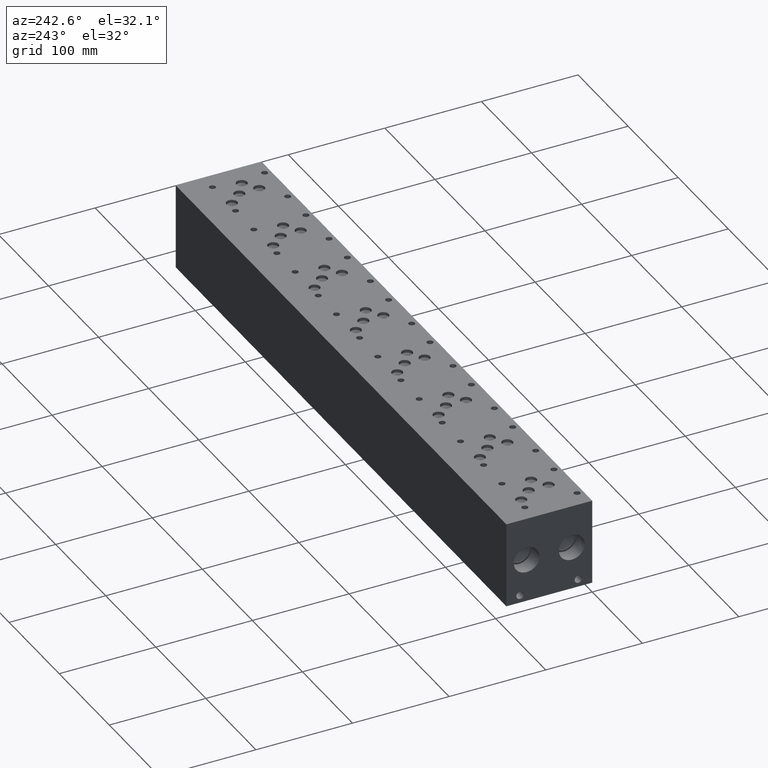
[diagram: clean part render]
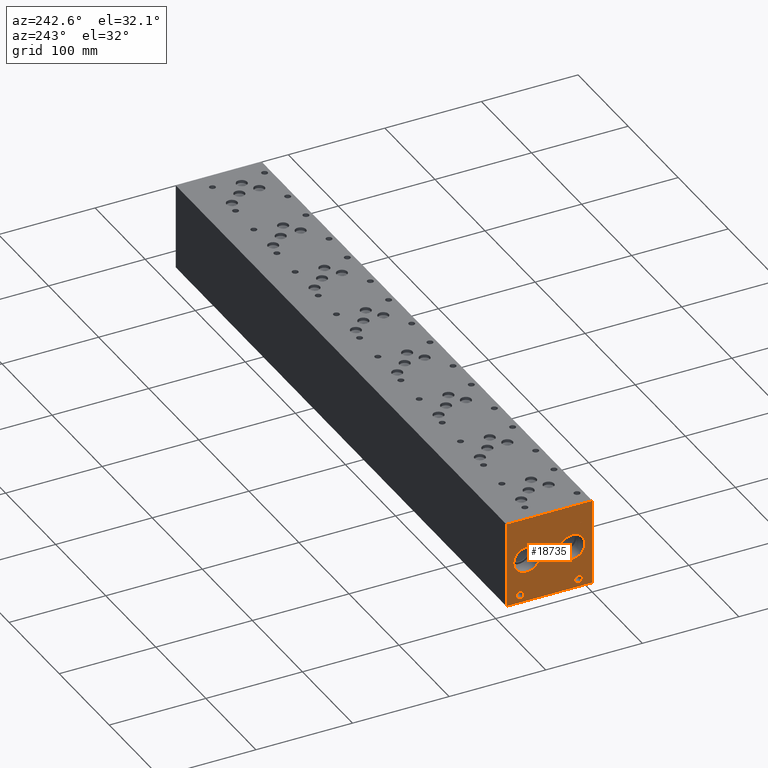
[diagram: same view with one face highlighted and labeled with its STEP entity id]
A machine part, auxiliary view. The second image highlights one B-rep face of the part: STEP entity #18735.
In plain terms, the highlighted planar face has unit normal (-1, 0, 0).
Its self-contained STEP definition (entity closure, byte-faithful):
#257=CIRCLE('',#19764,3.9624);
#258=CIRCLE('',#19765,3.9624);
#259=CIRCLE('',#19766,3.9624);
#260=CIRCLE('',#19767,3.9624);
#261=CIRCLE('',#19768,13.462);
#262=CIRCLE('',#19769,13.462);
#263=CIRCLE('',#19770,13.462);
#264=CIRCLE('',#19771,13.462);
#784=FACE_BOUND('',#2830,.T.);
#785=FACE_BOUND('',#2831,.T.);
#786=FACE_BOUND('',#2832,.T.);
#787=FACE_BOUND('',#2833,.T.);
#788=FACE_BOUND('',#2834,.T.);
#789=FACE_BOUND('',#2835,.T.);
#1023=B_SPLINE_CURVE_WITH_KNOTS('',2,(#25739,#25740,#25741,#25742),
 .UNSPECIFIED.,.F.,.F.,(3,1,3),(0.,1.,2.),.UNSPECIFIED.);
#1025=B_SPLINE_CURVE_WITH_KNOTS('',2,(#25760,#25761,#25762,#25763),
 .UNSPECIFIED.,.F.,.F.,(3,1,3),(0.,1.,2.),.UNSPECIFIED.);
#1027=B_SPLINE_CURVE_WITH_KNOTS('',2,(#25809,#25810,#25811,#25812),
 .UNSPECIFIED.,.F.,.F.,(3,1,3),(0.,1.,2.),.UNSPECIFIED.);
#1029=B_SPLINE_CURVE_WITH_KNOTS('',2,(#25827,#25828,#25829,#25830),
 .UNSPECIFIED.,.F.,.F.,(3,1,3),(0.,1.,2.),.UNSPECIFIED.);
#1799=FACE_OUTER_BOUND('',#2829,.T.);
#2829=EDGE_LOOP('',(#12295,#12296,#12297,#12298));
#2830=EDGE_LOOP('',(#12299,#12300,#12301,#12302,#12303,#12304,#12305,#12306));
#2831=EDGE_LOOP('',(#12307,#12308));
#2832=EDGE_LOOP('',(#12309,#12310));
#2833=EDGE_LOOP('',(#12311,#12312));
#2834=EDGE_LOOP('',(#12313,#12314));
#2835=EDGE_LOOP('',(#12315,#12316,#12317,#12318,#12319,#12320,#12321,#12322,
#12323));
#4073=LINE('',#25589,#5763);
#4077=LINE('',#25597,#5767);
#4080=LINE('',#25603,#5770);
#4083=LINE('',#25609,#5773);
#4086=LINE('',#25615,#5776);
#4089=LINE('',#25621,#5779);
#4092=LINE('',#25627,#5782);
#4095=LINE('',#25632,#5785);
#4113=LINE('',#25772,#5803);
#4116=LINE('',#25778,#5806);
#4119=LINE('',#25784,#5809);
#4122=LINE('',#25790,#5812);
#4125=LINE('',#25796,#5815);
#4129=LINE('',#25839,#5819);
#4130=LINE('',#25841,#5820);
#4131=LINE('',#25843,#5821);
#4132=LINE('',#25844,#5822);
#5763=VECTOR('',#21136,10.);
#5767=VECTOR('',#21142,10.);
#5770=VECTOR('',#21147,10.);
#5773=VECTOR('',#21152,10.);
#5776=VECTOR('',#21157,10.);
#5779=VECTOR('',#21162,10.);
#5782=VECTOR('',#21167,10.);
#5785=VECTOR('',#21172,10.);
#5803=VECTOR('',#21200,10.);
#5806=VECTOR('',#21205,10.);
#5809=VECTOR('',#21210,10.);
#5812=VECTOR('',#21215,10.);
#5815=VECTOR('',#21220,10.);
#5819=VECTOR('',#21228,10.);
#5820=VECTOR('',#21229,10.);
#5821=VECTOR('',#21230,10.);
#5822=VECTOR('',#21231,10.);
#7453=VERTEX_POINT('',#25587);
#7454=VERTEX_POINT('',#25588);
#7457=VERTEX_POINT('',#25596);
#7459=VERTEX_POINT('',#25602);
#7461=VERTEX_POINT('',#25608);
#7463=VERTEX_POINT('',#25614);
#7465=VERTEX_POINT('',#25620);
#7467=VERTEX_POINT('',#25626);
#7483=VERTEX_POINT('',#25737);
#7484=VERTEX_POINT('',#25738);
#7487=VERTEX_POINT('',#25759);
#7489=VERTEX_POINT('',#25771);
#7491=VERTEX_POINT('',#25777);
#7493=VERTEX_POINT('',#25783);
#7495=VERTEX_POINT('',#25789);
#7497=VERTEX_POINT('',#25795);
#7499=VERTEX_POINT('',#25808);
#7501=VERTEX_POINT('',#25837);
#7502=VERTEX_POINT('',#25838);
#7503=VERTEX_POINT('',#25840);
#7504=VERTEX_POINT('',#25842);
#7505=VERTEX_POINT('',#25845);
#7506=VERTEX_POINT('',#25846);
#7507=VERTEX_POINT('',#25849);
#7508=VERTEX_POINT('',#25850);
#7509=VERTEX_POINT('',#25853);
#7510=VERTEX_POINT('',#25854);
#7511=VERTEX_POINT('',#25857);
#7512=VERTEX_POINT('',#25858);
#9395=EDGE_CURVE('',#7453,#7454,#4073,.T.);
#9399=EDGE_CURVE('',#7457,#7453,#4077,.T.);
#9402=EDGE_CURVE('',#7459,#7457,#4080,.T.);
#9405=EDGE_CURVE('',#7461,#7459,#4083,.T.);
#9408=EDGE_CURVE('',#7463,#7461,#4086,.T.);
#9411=EDGE_CURVE('',#7465,#7463,#4089,.T.);
#9414=EDGE_CURVE('',#7467,#7465,#4092,.T.);
#9417=EDGE_CURVE('',#7454,#7467,#4095,.T.);
#9440=EDGE_CURVE('',#7483,#7484,#1023,.T.);
#9444=EDGE_CURVE('',#7487,#7483,#1025,.T.);
#9447=EDGE_CURVE('',#7489,#7487,#4113,.T.);
#9450=EDGE_CURVE('',#7491,#7489,#4116,.T.);
#9453=EDGE_CURVE('',#7493,#7491,#4119,.T.);
#9456=EDGE_CURVE('',#7495,#7493,#4122,.T.);
#9459=EDGE_CURVE('',#7497,#7495,#4125,.T.);
#9462=EDGE_CURVE('',#7499,#7497,#1027,.T.);
#9465=EDGE_CURVE('',#7484,#7499,#1029,.T.);
#9467=EDGE_CURVE('',#7501,#7502,#4129,.T.);
#9468=EDGE_CURVE('',#7502,#7503,#4130,.T.);
#9469=EDGE_CURVE('',#7504,#7503,#4131,.T.);
#9470=EDGE_CURVE('',#7501,#7504,#4132,.T.);
#9471=EDGE_CURVE('',#7505,#7506,#257,.T.);
#9472=EDGE_CURVE('',#7506,#7505,#258,.T.);
#9473=EDGE_CURVE('',#7507,#7508,#259,.T.);
#9474=EDGE_CURVE('',#7508,#7507,#260,.T.);
#9475=EDGE_CURVE('',#7509,#7510,#261,.T.);
#9476=EDGE_CURVE('',#7510,#7509,#262,.T.);
#9477=EDGE_CURVE('',#7511,#7512,#263,.T.);
#9478=EDGE_CURVE('',#7512,#7511,#264,.T.);
#12295=ORIENTED_EDGE('',*,*,#9467,.T.);
#12296=ORIENTED_EDGE('',*,*,#9468,.T.);
#12297=ORIENTED_EDGE('',*,*,#9469,.F.);
#12298=ORIENTED_EDGE('',*,*,#9470,.F.);
#12299=ORIENTED_EDGE('',*,*,#9395,.T.);
#12300=ORIENTED_EDGE('',*,*,#9417,.T.);
#12301=ORIENTED_EDGE('',*,*,#9414,.T.);
#12302=ORIENTED_EDGE('',*,*,#9411,.T.);
#12303=ORIENTED_EDGE('',*,*,#9408,.T.);
#12304=ORIENTED_EDGE('',*,*,#9405,.T.);
#12305=ORIENTED_EDGE('',*,*,#9402,.T.);
#12306=ORIENTED_EDGE('',*,*,#9399,.T.);
#12307=ORIENTED_EDGE('',*,*,#9471,.T.);
#12308=ORIENTED_EDGE('',*,*,#9472,.T.);
#12309=ORIENTED_EDGE('',*,*,#9473,.T.);
#12310=ORIENTED_EDGE('',*,*,#9474,.T.);
#12311=ORIENTED_EDGE('',*,*,#9475,.T.);
#12312=ORIENTED_EDGE('',*,*,#9476,.T.);
#12313=ORIENTED_EDGE('',*,*,#9477,.T.);
#12314=ORIENTED_EDGE('',*,*,#9478,.T.);
#12315=ORIENTED_EDGE('',*,*,#9440,.T.);
#12316=ORIENTED_EDGE('',*,*,#9465,.T.);
#12317=ORIENTED_EDGE('',*,*,#9462,.T.);
#12318=ORIENTED_EDGE('',*,*,#9459,.T.);
#12319=ORIENTED_EDGE('',*,*,#9456,.T.);
#12320=ORIENTED_EDGE('',*,*,#9453,.T.);
#12321=ORIENTED_EDGE('',*,*,#9450,.T.);
#12322=ORIENTED_EDGE('',*,*,#9447,.T.);
#12323=ORIENTED_EDGE('',*,*,#9444,.T.);
#17493=PLANE('',#19763);
#18735=ADVANCED_FACE('',(#1799,#784,#785,#786,#787,#788,#789),#17493,.T.);
#19763=AXIS2_PLACEMENT_3D('',#25836,#21226,#21227);
#19764=AXIS2_PLACEMENT_3D('',#25847,#21232,#21233);
#19765=AXIS2_PLACEMENT_3D('',#25848,#21234,#21235);
#19766=AXIS2_PLACEMENT_3D('',#25851,#21236,#21237);
#19767=AXIS2_PLACEMENT_3D('',#25852,#21238,#21239);
#19768=AXIS2_PLACEMENT_3D('',#25855,#21240,#21241);
#19769=AXIS2_PLACEMENT_3D('',#25856,#21242,#21243);
#19770=AXIS2_PLACEMENT_3D('',#25859,#21244,#21245);
#19771=AXIS2_PLACEMENT_3D('',#25860,#21246,#21247);
#21136=DIRECTION('',(0.,1.,0.));
#21142=DIRECTION('',(0.,3.17280044688052E-15,-1.));
#21147=DIRECTION('',(0.,1.,0.));
#21152=DIRECTION('',(0.,0.,-1.));
#21157=DIRECTION('',(0.,-1.,-1.73992282570867E-15));
#21162=DIRECTION('',(0.,0.,1.));
#21167=DIRECTION('',(0.,1.,4.16909044227778E-15));
#21172=DIRECTION('',(0.,-3.17280044688052E-15,1.));
#21200=DIRECTION('',(0.,-1.,-5.56775304226775E-15));
#21205=DIRECTION('',(0.,-3.49676548440641E-15,1.));
#21210=DIRECTION('',(0.,1.,1.0524411238433E-14));
#21215=DIRECTION('',(0.,3.75218139804999E-15,-1.));
#21220=DIRECTION('',(0.,1.,0.));
#21226=DIRECTION('center_axis',(-1.,0.,0.));
#21227=DIRECTION('ref_axis',(0.,-1.,0.));
#21228=DIRECTION('',(0.,-1.,0.));
#21229=DIRECTION('',(0.,0.,1.));
#21230=DIRECTION('',(0.,-1.,0.));
#21231=DIRECTION('',(0.,0.,1.));
#21232=DIRECTION('center_axis',(1.,0.,0.));
#21233=DIRECTION('ref_axis',(0.,1.,0.));
#21234=DIRECTION('center_axis',(1.,0.,0.));
#21235=DIRECTION('ref_axis',(0.,1.,0.));
#21236=DIRECTION('center_axis',(1.,0.,0.));
#21237=DIRECTION('ref_axis',(0.,1.,0.));
#21238=DIRECTION('center_axis',(1.,0.,0.));
#21239=DIRECTION('ref_axis',(0.,1.,0.));
#21240=DIRECTION('center_axis',(1.,0.,0.));
#21241=DIRECTION('ref_axis',(0.,1.,0.));
#21242=DIRECTION('center_axis',(1.,0.,0.));
#21243=DIRECTION('ref_axis',(0.,1.,0.));
#21244=DIRECTION('center_axis',(1.,0.,0.));
#21245=DIRECTION('ref_axis',(0.,1.,0.));
#21246=DIRECTION('center_axis',(1.,0.,0.));
#21247=DIRECTION('ref_axis',(0.,1.,0.));
#25587=CARTESIAN_POINT('',(0.,77.548834728547,66.04));
#25588=CARTESIAN_POINT('',(0.,78.3927569200865,66.04));
#25589=CARTESIAN_POINT('',(0.,83.2244173642735,66.04));
#25596=CARTESIAN_POINT('',(0.,77.548834728547,71.6387033194815));
#25597=CARTESIAN_POINT('',(0.,77.5488347285471,35.8193516597407));
#25602=CARTESIAN_POINT('',(0.,75.4184457816119,71.6387033194815));
#25603=CARTESIAN_POINT('',(0.,82.1592228908059,71.6387033194815));
#25608=CARTESIAN_POINT('',(0.,75.4184457816119,72.3899999046326));
#25609=CARTESIAN_POINT('',(0.,75.4184457816119,36.1949999523163));
#25614=CARTESIAN_POINT('',(0.,80.5231458670216,72.3899999046326));
#25615=CARTESIAN_POINT('',(0.,84.7115729335107,72.3899999046326));
#25620=CARTESIAN_POINT('',(0.,80.5231458670216,71.6387033194816));
#25621=CARTESIAN_POINT('',(0.,80.5231458670216,35.8193516597408));
#25626=CARTESIAN_POINT('',(0.,78.3927569200865,71.6387033194816));
#25627=CARTESIAN_POINT('',(0.,83.6463784600431,71.6387033194816));
#25632=CARTESIAN_POINT('',(0.,78.3927569200866,33.02));
#25737=CARTESIAN_POINT('',(0.,10.8314327976406,71.9937681439707));
#25738=CARTESIAN_POINT('',(0.,10.074990345468,70.4757373726039));
#25739=CARTESIAN_POINT('Ctrl Pts',(0.,10.8314327976406,71.9937681439707));
#25740=CARTESIAN_POINT('Ctrl Pts',(0.,10.4763679731514,71.7519123939563));
#25741=CARTESIAN_POINT('Ctrl Pts',(0.,10.074990345468,71.0057616758269));
#25742=CARTESIAN_POINT('Ctrl Pts',(0.,10.074990345468,70.4757373726039));
#25759=CARTESIAN_POINT('',(0.,12.4935478456117,72.3899999046326));
#25760=CARTESIAN_POINT('Ctrl Pts',(0.,12.4935478456117,72.3899999046326));
#25761=CARTESIAN_POINT('Ctrl Pts',(0.,11.9275024732376,72.3899999046326));
#25762=CARTESIAN_POINT('Ctrl Pts',(0.,11.1350389519139,72.2047486918556));
#25763=CARTESIAN_POINT('Ctrl Pts',(0.,10.8314327976406,71.9937681439707));
#25771=CARTESIAN_POINT('',(0.,14.0887666223022,72.3899999046326));
#25772=CARTESIAN_POINT('',(0.,51.4943833111509,72.3899999046328));
#25777=CARTESIAN_POINT('',(0.,14.0887666223022,66.04));
#25778=CARTESIAN_POINT('',(0.,14.0887666223023,33.0199999999999));
#25783=CARTESIAN_POINT('',(0.,13.2448444307627,66.04));
#25784=CARTESIAN_POINT('',(0.,51.072422215381,66.0400000000004));
#25789=CARTESIAN_POINT('',(0.,13.2448444307627,68.4070988299279));
#25790=CARTESIAN_POINT('',(0.,13.2448444307628,34.2035494149638));
#25795=CARTESIAN_POINT('',(0.,12.5295689147628,68.4070988299279));
#25796=CARTESIAN_POINT('',(0.,50.7147844573814,68.4070988299279));
#25808=CARTESIAN_POINT('',(0.,10.6307439837989,69.0657698086904));
#25809=CARTESIAN_POINT('Ctrl Pts',(0.,10.6307439837989,69.0657698086904));
#25810=CARTESIAN_POINT('Ctrl Pts',(0.,10.9600794731802,68.7415801863307));
#25811=CARTESIAN_POINT('Ctrl Pts',(0.,11.8503144679139,68.4070988299278));
#25812=CARTESIAN_POINT('Ctrl Pts',(0.,12.5295689147628,68.4070988299279));
#25827=CARTESIAN_POINT('Ctrl Pts',(0.,10.074990345468,70.4757373726039));
#25828=CARTESIAN_POINT('Ctrl Pts',(0.,10.074990345468,70.0640680108773));
#25829=CARTESIAN_POINT('Ctrl Pts',(0.,10.3683047656982,69.3230631597695));
#25830=CARTESIAN_POINT('Ctrl Pts',(0.,10.6307439837989,69.0657698086904));
#25836=CARTESIAN_POINT('Origin',(0.,88.9,0.));
#25837=CARTESIAN_POINT('',(0.,88.9,0.));
#25838=CARTESIAN_POINT('',(0.,0.,0.));
#25839=CARTESIAN_POINT('',(0.,88.9,0.));
#25840=CARTESIAN_POINT('',(0.,0.,88.9));
#25841=CARTESIAN_POINT('',(0.,0.,0.));
#25842=CARTESIAN_POINT('',(0.,88.9,88.9));
#25843=CARTESIAN_POINT('',(0.,88.9,88.9));
#25844=CARTESIAN_POINT('',(0.,88.9,0.));
#25845=CARTESIAN_POINT('',(0.,18.2372,7.92479999999999));
#25846=CARTESIAN_POINT('',(0.,10.3124,7.92479999999999));
#25847=CARTESIAN_POINT('Origin',(0.,14.2748,7.92479999999999));
#25848=CARTESIAN_POINT('Origin',(0.,14.2748,7.92479999999999));
#25849=CARTESIAN_POINT('',(0.,78.5876,7.92479999999999));
#25850=CARTESIAN_POINT('',(0.,70.6628,7.92479999999999));
#25851=CARTESIAN_POINT('Origin',(0.,74.6252,7.92479999999999));
#25852=CARTESIAN_POINT('Origin',(0.,74.6252,7.92479999999999));
#25853=CARTESIAN_POINT('',(0.,81.28,44.45));
#25854=CARTESIAN_POINT('',(1.11022302462516E-15,54.356,44.45));
#25855=CARTESIAN_POINT('Origin',(0.,67.818,44.45));
#25856=CARTESIAN_POINT('Origin',(0.,67.818,44.45));
#25857=CARTESIAN_POINT('',(0.,34.544,44.45));
#25858=CARTESIAN_POINT('',(1.11022302462516E-15,7.62,44.45));
#25859=CARTESIAN_POINT('Origin',(0.,21.082,44.45));
#25860=CARTESIAN_POINT('Origin',(0.,21.082,44.45));